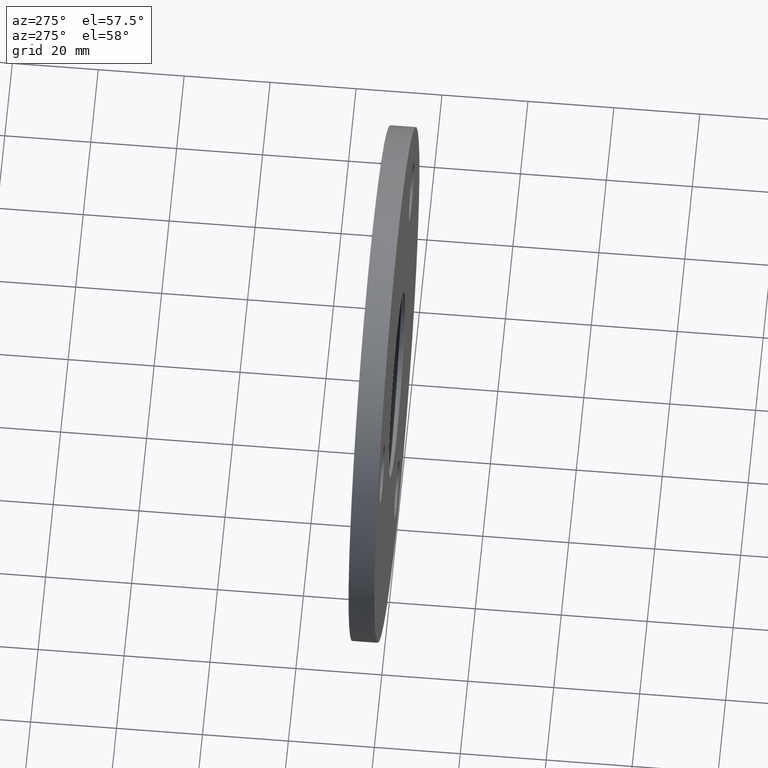
[diagram: clean part render]
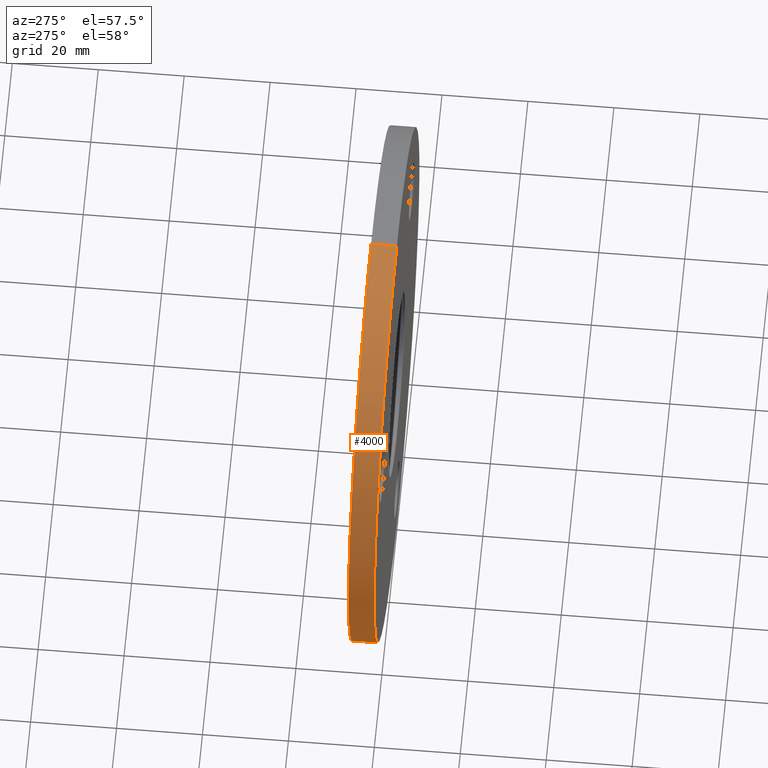
[diagram: same view with one face highlighted and labeled with its STEP entity id]
A machine part, auxiliary view. The second image highlights one B-rep face of the part: STEP entity #4000.
In plain terms, the highlighted cylindrical surface (partial cylindrical patch) has radius 60 mm, axis along (-0, -1, -0).
Its self-contained STEP definition (entity closure, byte-faithful):
#754 = VERTEX_POINT ( 'NONE', #4072 ) ;
#1080 = VECTOR ( 'NONE', #10108, 1000.000000000000000 ) ;
#1453 = ORIENTED_EDGE ( 'NONE', *, *, #9238, .T. ) ;
#1680 = CARTESIAN_POINT ( 'NONE',  ( 0.000000000000000000, 0.000000000000000000, 0.000000000000000000 ) ) ;
#2187 = FACE_OUTER_BOUND ( 'NONE', #12073, .T. ) ;
#2361 = LINE ( 'NONE', #12011, #1080 ) ;
#2607 = DIRECTION ( 'NONE',  ( 0.000000000000000000, 1.000000000000000000, 0.000000000000000000 ) ) ;
#2918 = CARTESIAN_POINT ( 'NONE',  ( 7.347880794884118356E-15, 6.000000000000000000, 60.00000000000000000 ) ) ;
#3516 = DIRECTION ( 'NONE',  ( 0.000000000000000000, 0.000000000000000000, 1.000000000000000000 ) ) ;
#3648 = CARTESIAN_POINT ( 'NONE',  ( 0.000000000000000000, 6.000000000000000000, -60.00000000000000000 ) ) ;
#3822 = CARTESIAN_POINT ( 'NONE',  ( 7.347880794884118356E-15, 0.000000000000000000, 60.00000000000000000 ) ) ;
#3986 = ORIENTED_EDGE ( 'NONE', *, *, #5566, .T. ) ;
#4000 = ADVANCED_FACE ( 'NONE', ( #2187 ), #7918, .T. ) ;
#4055 = AXIS2_PLACEMENT_3D ( 'NONE', #10173, #10128, #7397 ) ;
#4072 = CARTESIAN_POINT ( 'NONE',  ( 0.000000000000000000, 0.000000000000000000, -60.00000000000000000 ) ) ;
#5245 = VECTOR ( 'NONE', #12069, 1000.000000000000000 ) ;
#5566 = EDGE_CURVE ( 'NONE', #11062, #754, #10972, .T. ) ;
#6220 = CIRCLE ( 'NONE', #9668, 60.00000000000000000 ) ;
#6447 = DIRECTION ( 'NONE',  ( 0.000000000000000000, 0.000000000000000000, -1.000000000000000000 ) ) ;
#6890 = ORIENTED_EDGE ( 'NONE', *, *, #7631, .F. ) ;
#7090 = ORIENTED_EDGE ( 'NONE', *, *, #11324, .F. ) ;
#7397 = DIRECTION ( 'NONE',  ( 0.000000000000000000, 0.000000000000000000, 1.000000000000000000 ) ) ;
#7631 = EDGE_CURVE ( 'NONE', #11062, #11412, #10641, .T. ) ;
#7918 = CYLINDRICAL_SURFACE ( 'NONE', #11622, 60.00000000000000000 ) ;
#8193 = VERTEX_POINT ( 'NONE', #3822 ) ;
#8234 = CARTESIAN_POINT ( 'NONE',  ( 0.000000000000000000, 6.000000000000000000, -60.00000000000000000 ) ) ;
#9238 = EDGE_CURVE ( 'NONE', #754, #8193, #6220, .T. ) ;
#9668 = AXIS2_PLACEMENT_3D ( 'NONE', #1680, #2607, #3516 ) ;
#10108 = DIRECTION ( 'NONE',  ( -0.000000000000000000, -1.000000000000000000, -0.000000000000000000 ) ) ;
#10128 = DIRECTION ( 'NONE',  ( 0.000000000000000000, 1.000000000000000000, 0.000000000000000000 ) ) ;
#10173 = CARTESIAN_POINT ( 'NONE',  ( 0.000000000000000000, 6.000000000000000000, 0.000000000000000000 ) ) ;
#10641 = CIRCLE ( 'NONE', #4055, 60.00000000000000000 ) ;
#10972 = LINE ( 'NONE', #8234, #5245 ) ;
#11062 = VERTEX_POINT ( 'NONE', #3648 ) ;
#11324 = EDGE_CURVE ( 'NONE', #11412, #8193, #2361, .T. ) ;
#11412 = VERTEX_POINT ( 'NONE', #2918 ) ;
#11622 = AXIS2_PLACEMENT_3D ( 'NONE', #12010, #12095, #6447 ) ;
#12010 = CARTESIAN_POINT ( 'NONE',  ( 0.000000000000000000, 6.000000000000000000, 0.000000000000000000 ) ) ;
#12011 = CARTESIAN_POINT ( 'NONE',  ( 7.347880794884118356E-15, 6.000000000000000000, 60.00000000000000000 ) ) ;
#12069 = DIRECTION ( 'NONE',  ( -0.000000000000000000, -1.000000000000000000, -0.000000000000000000 ) ) ;
#12073 = EDGE_LOOP ( 'NONE', ( #7090, #6890, #3986, #1453 ) ) ;
#12095 = DIRECTION ( 'NONE',  ( -0.000000000000000000, -1.000000000000000000, -0.000000000000000000 ) ) ;